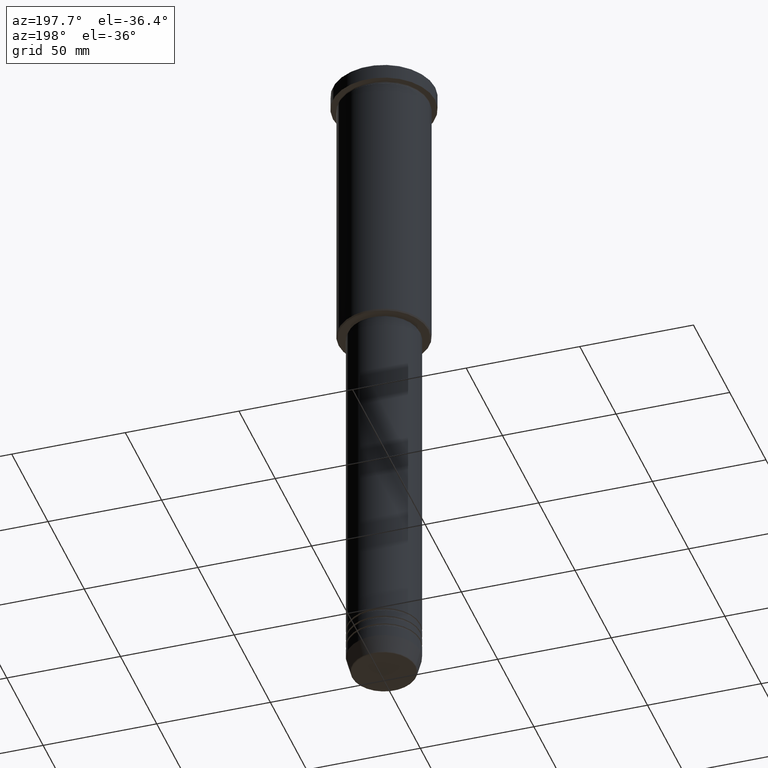
[diagram: clean part render]
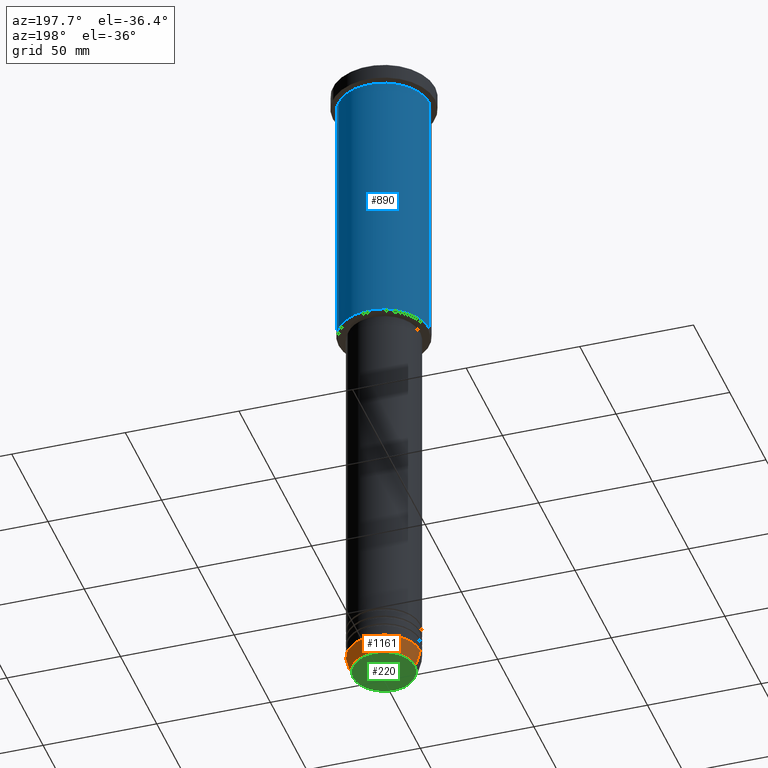
[diagram: same view with three faces highlighted in distinct colors, each labeled with its STEP entity id]
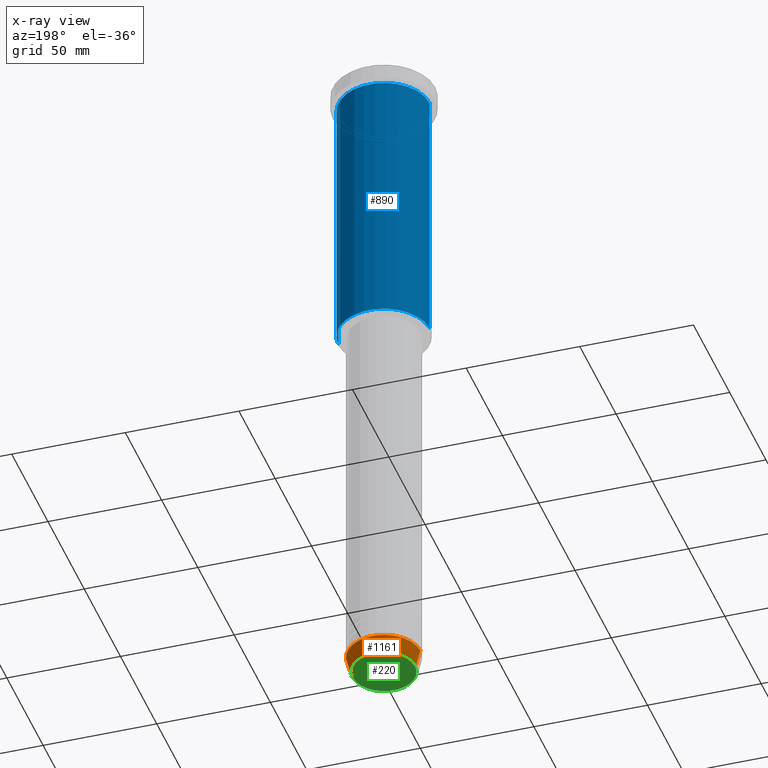
[diagram: x-ray of the same camera — body ghosted, the three highlighted faces saturated]
A machine part, auxiliary view with three faces highlighted in distinct colors.
The next image is the same camera in x-ray (body ghosted, the three faces saturated) — at least one of them is partly hidden behind the body in this view.
Their STEP definitions:

[orange] entity #1161 — the highlighted conical surface has half-angle 15 deg.
#8 = EDGE_LOOP ( 'NONE', ( #511, #919, #298, #129 ) ) ;
#78 = CARTESIAN_POINT ( 'NONE',  ( 16.00000000000000000, 0.000000000000000000, -292.5000000000000000 ) ) ;
#89 = EDGE_CURVE ( 'NONE', #855, #137, #937, .T. ) ;
#116 = CARTESIAN_POINT ( 'NONE',  ( -16.00000000000000000, 1.959434878635765131E-15, -292.5000000000000000 ) ) ;
#129 = ORIENTED_EDGE ( 'NONE', *, *, #560, .F. ) ;
#134 = VECTOR ( 'NONE', #222, 1000.000000000000000 ) ;
#137 = VERTEX_POINT ( 'NONE', #556 ) ;
#180 = DIRECTION ( 'NONE',  ( -0.000000000000000000, -0.000000000000000000, 1.000000000000000000 ) ) ;
#192 = LINE ( 'NONE', #116, #134 ) ;
#193 = CARTESIAN_POINT ( 'NONE',  ( 0.000000000000000000, 0.000000000000000000, -292.5000000000000000 ) ) ;
#222 = DIRECTION ( 'NONE',  ( -0.2588190451025213501, 3.169619151431772337E-17, 0.9659258262890680902 ) ) ;
#266 = DIRECTION ( 'NONE',  ( 0.2588190451025213501, 0.000000000000000000, 0.9659258262890680902 ) ) ;
#274 = CARTESIAN_POINT ( 'NONE',  ( 14.08968047592161632, 0.000000000000000000, -299.6294095225512137 ) ) ;
#293 = FACE_OUTER_BOUND ( 'NONE', #8, .T. ) ;
#298 = ORIENTED_EDGE ( 'NONE', *, *, #352, .F. ) ;
#352 = EDGE_CURVE ( 'NONE', #875, #1134, #610, .T. ) ;
#386 = DIRECTION ( 'NONE',  ( -0.000000000000000000, -0.000000000000000000, 1.000000000000000000 ) ) ;
#462 = DIRECTION ( 'NONE',  ( 1.000000000000000000, 0.000000000000000000, 0.000000000000000000 ) ) ;
#490 = AXIS2_PLACEMENT_3D ( 'NONE', #1013, #180, #462 ) ;
#511 = ORIENTED_EDGE ( 'NONE', *, *, #89, .T. ) ;
#556 = CARTESIAN_POINT ( 'NONE',  ( -14.08968047592161632, 1.842461544110200874E-15, -299.6294095225512137 ) ) ;
#560 = EDGE_CURVE ( 'NONE', #855, #875, #846, .T. ) ;
#569 = CONICAL_SURFACE ( 'NONE', #1183, 16.00000000000000000, 0.2617993877991500740 ) ;
#601 = CARTESIAN_POINT ( 'NONE',  ( 0.000000000000000000, 0.000000000000000000, -292.5000000000000000 ) ) ;
#610 = CIRCLE ( 'NONE', #904, 16.00000000000000000 ) ;
#612 = VECTOR ( 'NONE', #266, 1000.000000000000000 ) ;
#622 = DIRECTION ( 'NONE',  ( 1.000000000000000000, 0.000000000000000000, 0.000000000000000000 ) ) ;
#747 = EDGE_CURVE ( 'NONE', #137, #1134, #192, .T. ) ;
#846 = LINE ( 'NONE', #78, #612 ) ;
#855 = VERTEX_POINT ( 'NONE', #274 ) ;
#875 = VERTEX_POINT ( 'NONE', #1123 ) ;
#904 = AXIS2_PLACEMENT_3D ( 'NONE', #601, #1154, #622 ) ;
#919 = ORIENTED_EDGE ( 'NONE', *, *, #747, .T. ) ;
#932 = DIRECTION ( 'NONE',  ( 1.000000000000000000, 0.000000000000000000, 0.000000000000000000 ) ) ;
#937 = CIRCLE ( 'NONE', #490, 14.08968047592161632 ) ;
#1013 = CARTESIAN_POINT ( 'NONE',  ( 0.000000000000000000, 0.000000000000000000, -299.6294095225512137 ) ) ;
#1039 = CARTESIAN_POINT ( 'NONE',  ( -16.00000000000000000, 1.959434878635765131E-15, -292.5000000000000000 ) ) ;
#1123 = CARTESIAN_POINT ( 'NONE',  ( 16.00000000000000000, 0.000000000000000000, -292.5000000000000000 ) ) ;
#1134 = VERTEX_POINT ( 'NONE', #1039 ) ;
#1154 = DIRECTION ( 'NONE',  ( -0.000000000000000000, -0.000000000000000000, 1.000000000000000000 ) ) ;
#1161 = ADVANCED_FACE ( 'NONE', ( #293 ), #569, .T. ) ;
#1183 = AXIS2_PLACEMENT_3D ( 'NONE', #193, #386, #932 ) ;

[blue] entity #890 — the highlighted cylindrical surface (partial cylindrical patch) has radius 20 mm, axis along (-0, -0, 1).
#69 = EDGE_LOOP ( 'NONE', ( #438, #206, #760, #613 ) ) ;
#128 = EDGE_CURVE ( 'NONE', #505, #992, #1155, .T. ) ;
#144 = FACE_OUTER_BOUND ( 'NONE', #69, .T. ) ;
#152 = AXIS2_PLACEMENT_3D ( 'NONE', #1117, #1138, #502 ) ;
#164 = CARTESIAN_POINT ( 'NONE',  ( -20.00000000000000355, 2.449293598294706907E-15, -125.5000000000000284 ) ) ;
#170 = AXIS2_PLACEMENT_3D ( 'NONE', #316, #692, #1053 ) ;
#206 = ORIENTED_EDGE ( 'NONE', *, *, #509, .T. ) ;
#239 = DIRECTION ( 'NONE',  ( -0.000000000000000000, -0.000000000000000000, 1.000000000000000000 ) ) ;
#316 = CARTESIAN_POINT ( 'NONE',  ( 0.000000000000000000, 0.000000000000000000, -7.999999999999994671 ) ) ;
#334 = LINE ( 'NONE', #348, #751 ) ;
#348 = CARTESIAN_POINT ( 'NONE',  ( -20.00000000000000355, 2.449293598294706907E-15, 0.000000000000000000 ) ) ;
#368 = DIRECTION ( 'NONE',  ( -1.000000000000000000, 0.000000000000000000, 0.000000000000000000 ) ) ;
#393 = DIRECTION ( 'NONE',  ( -0.000000000000000000, -0.000000000000000000, 1.000000000000000000 ) ) ;
#411 = CARTESIAN_POINT ( 'NONE',  ( 20.00000000000000000, 0.000000000000000000, -7.999999999999994671 ) ) ;
#438 = ORIENTED_EDGE ( 'NONE', *, *, #128, .T. ) ;
#502 = DIRECTION ( 'NONE',  ( 1.000000000000000000, 0.000000000000000000, 0.000000000000000000 ) ) ;
#505 = VERTEX_POINT ( 'NONE', #603 ) ;
#509 = EDGE_CURVE ( 'NONE', #992, #804, #334, .T. ) ;
#512 = AXIS2_PLACEMENT_3D ( 'NONE', #1002, #1094, #368 ) ;
#603 = CARTESIAN_POINT ( 'NONE',  ( 20.00000000000000355, 0.000000000000000000, -125.5000000000000284 ) ) ;
#613 = ORIENTED_EDGE ( 'NONE', *, *, #911, .F. ) ;
#692 = DIRECTION ( 'NONE',  ( -0.000000000000000000, -0.000000000000000000, 1.000000000000000000 ) ) ;
#708 = CYLINDRICAL_SURFACE ( 'NONE', #152, 20.00000000000000355 ) ;
#751 = VECTOR ( 'NONE', #239, 1000.000000000000000 ) ;
#760 = ORIENTED_EDGE ( 'NONE', *, *, #798, .F. ) ;
#798 = EDGE_CURVE ( 'NONE', #883, #804, #1181, .T. ) ;
#804 = VERTEX_POINT ( 'NONE', #1126 ) ;
#883 = VERTEX_POINT ( 'NONE', #411 ) ;
#885 = LINE ( 'NONE', #1143, #906 ) ;
#890 = ADVANCED_FACE ( 'NONE', ( #144 ), #708, .T. ) ;
#906 = VECTOR ( 'NONE', #393, 1000.000000000000000 ) ;
#911 = EDGE_CURVE ( 'NONE', #505, #883, #885, .T. ) ;
#992 = VERTEX_POINT ( 'NONE', #164 ) ;
#1002 = CARTESIAN_POINT ( 'NONE',  ( 0.000000000000000000, 0.000000000000000000, -125.5000000000000284 ) ) ;
#1053 = DIRECTION ( 'NONE',  ( 1.000000000000000000, 0.000000000000000000, 0.000000000000000000 ) ) ;
#1094 = DIRECTION ( 'NONE',  ( -0.000000000000000000, -0.000000000000000000, 1.000000000000000000 ) ) ;
#1117 = CARTESIAN_POINT ( 'NONE',  ( 0.000000000000000000, 0.000000000000000000, 0.000000000000000000 ) ) ;
#1126 = CARTESIAN_POINT ( 'NONE',  ( -20.00000000000000000, 2.449293598294706513E-15, -7.999999999999994671 ) ) ;
#1138 = DIRECTION ( 'NONE',  ( -0.000000000000000000, -0.000000000000000000, 1.000000000000000000 ) ) ;
#1143 = CARTESIAN_POINT ( 'NONE',  ( 20.00000000000000355, 0.000000000000000000, 0.000000000000000000 ) ) ;
#1155 = CIRCLE ( 'NONE', #512, 20.00000000000000355 ) ;
#1181 = CIRCLE ( 'NONE', #170, 20.00000000000000000 ) ;

[green] entity #220 — the highlighted planar face has unit normal (0, -0, 1).
#6 = EDGE_LOOP ( 'NONE', ( #283, #1135 ) ) ;
#16 = AXIS2_PLACEMENT_3D ( 'NONE', #188, #205, #291 ) ;
#118 = FACE_OUTER_BOUND ( 'NONE', #6, .T. ) ;
#188 = CARTESIAN_POINT ( 'NONE',  ( 0.000000000000000000, 0.000000000000000000, -300.0000000000000000 ) ) ;
#205 = DIRECTION ( 'NONE',  ( 0.000000000000000000, 0.000000000000000000, -1.000000000000000000 ) ) ;
#220 = ADVANCED_FACE ( 'NONE', ( #118 ), #959, .F. ) ;
#283 = ORIENTED_EDGE ( 'NONE', *, *, #1093, .T. ) ;
#291 = DIRECTION ( 'NONE',  ( 1.000000000000000000, 0.000000000000000000, 0.000000000000000000 ) ) ;
#381 = CIRCLE ( 'NONE', #16, 13.60671756277709399 ) ;
#398 = AXIS2_PLACEMENT_3D ( 'NONE', #573, #858, #1116 ) ;
#431 = CARTESIAN_POINT ( 'NONE',  ( -13.60671756277709399, 1.695915260300171258E-15, -300.0000000000000000 ) ) ;
#435 = VERTEX_POINT ( 'NONE', #431 ) ;
#455 = DIRECTION ( 'NONE',  ( 0.000000000000000000, 0.000000000000000000, -1.000000000000000000 ) ) ;
#573 = CARTESIAN_POINT ( 'NONE',  ( 0.000000000000000000, 0.000000000000000000, -300.0000000000000000 ) ) ;
#675 = AXIS2_PLACEMENT_3D ( 'NONE', #722, #455, #831 ) ;
#722 = CARTESIAN_POINT ( 'NONE',  ( 0.000000000000000000, 0.000000000000000000, -300.0000000000000000 ) ) ;
#831 = DIRECTION ( 'NONE',  ( 1.000000000000000000, 0.000000000000000000, 0.000000000000000000 ) ) ;
#858 = DIRECTION ( 'NONE',  ( 0.000000000000000000, -0.000000000000000000, 1.000000000000000000 ) ) ;
#924 = EDGE_CURVE ( 'NONE', #435, #954, #381, .T. ) ;
#954 = VERTEX_POINT ( 'NONE', #1056 ) ;
#959 = PLANE ( 'NONE',  #398 ) ;
#1056 = CARTESIAN_POINT ( 'NONE',  ( 13.60671756277709399, 0.000000000000000000, -300.0000000000000000 ) ) ;
#1093 = EDGE_CURVE ( 'NONE', #954, #435, #1182, .T. ) ;
#1116 = DIRECTION ( 'NONE',  ( 1.000000000000000000, 0.000000000000000000, 0.000000000000000000 ) ) ;
#1135 = ORIENTED_EDGE ( 'NONE', *, *, #924, .T. ) ;
#1182 = CIRCLE ( 'NONE', #675, 13.60671756277709399 ) ;